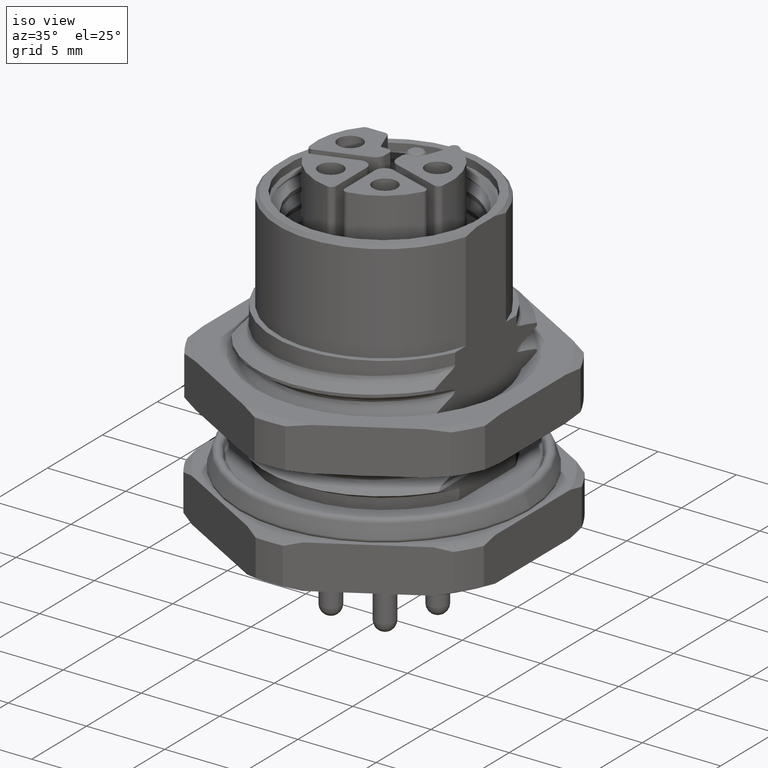
[diagram: clean part render]
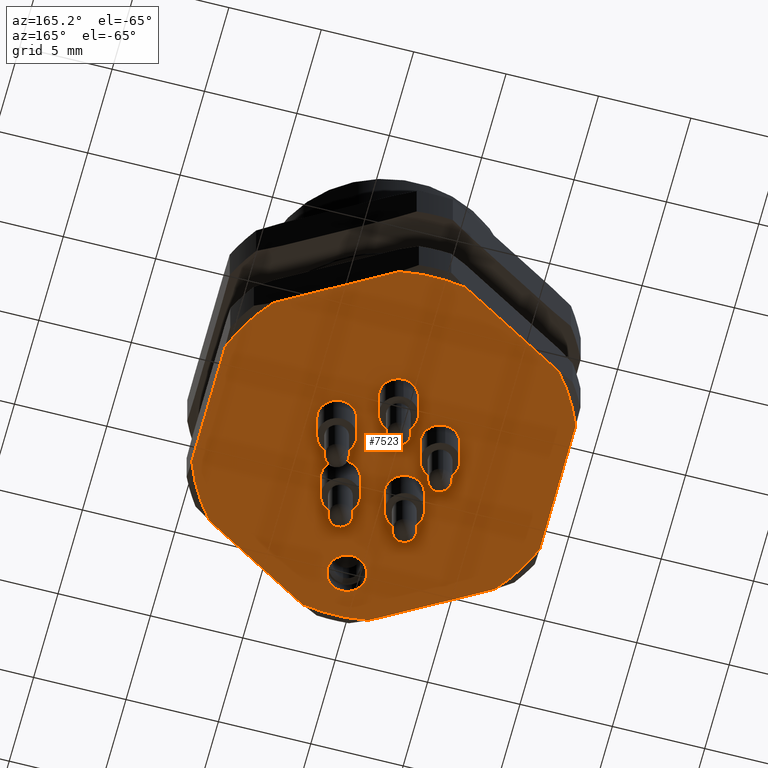
[diagram: tour spotlight — one face highlighted and labeled with its STEP entity id]
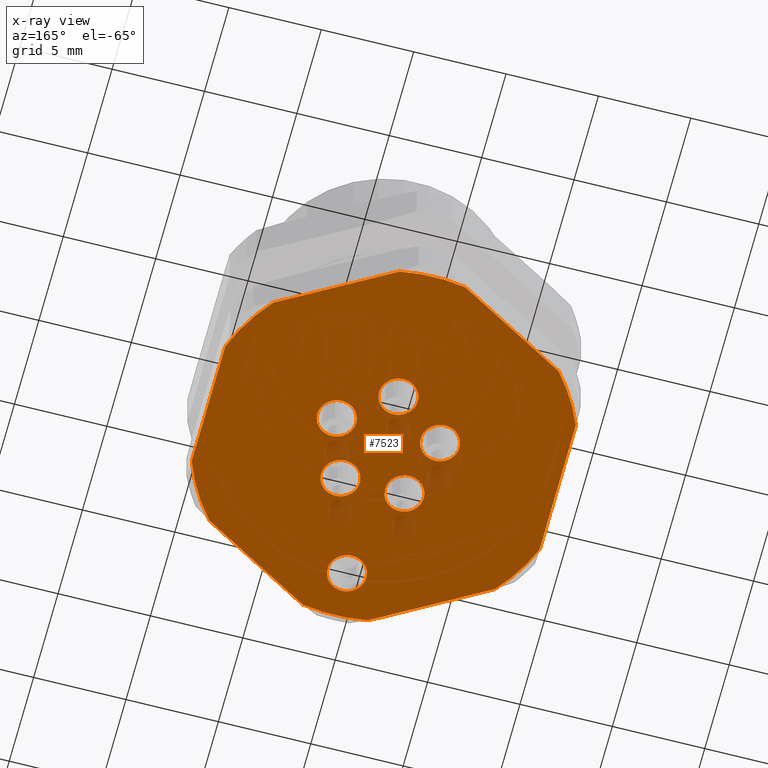
[diagram: x-ray of the same camera — body ghosted, this tour face saturated]
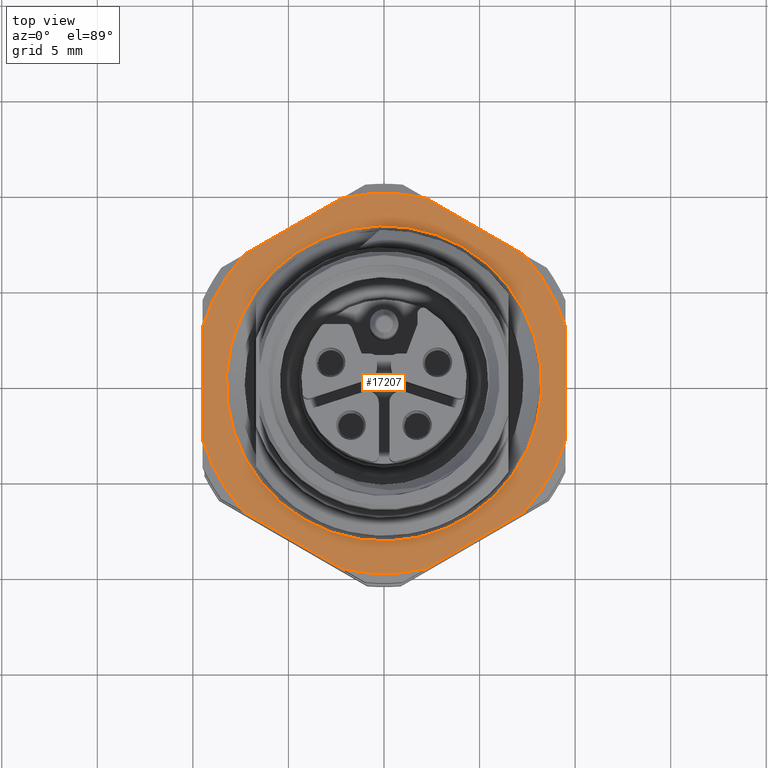
[diagram: tour spotlight — one face highlighted and labeled with its STEP entity id]
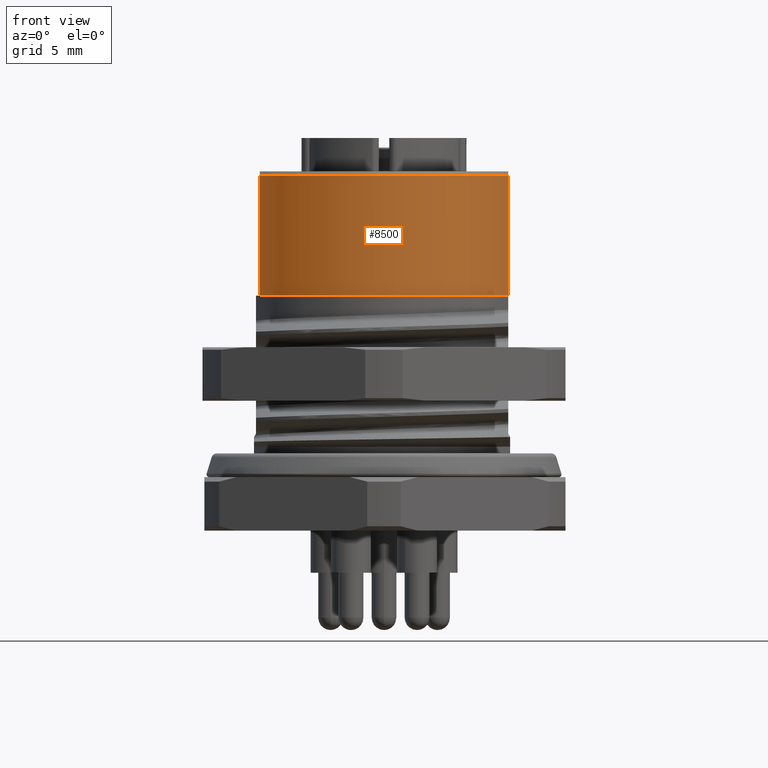
[diagram: tour spotlight — one face highlighted and labeled with its STEP entity id]
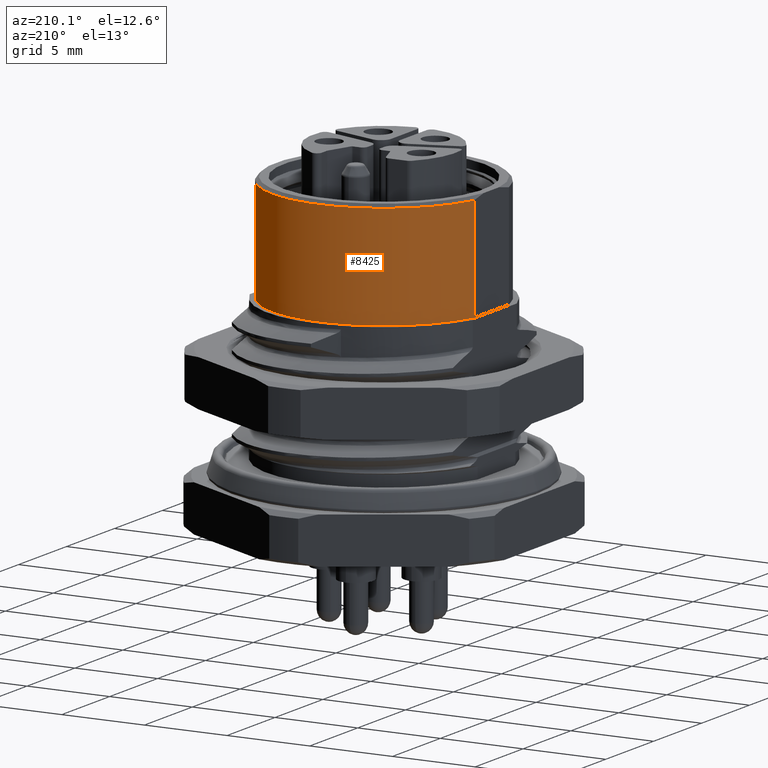
[diagram: tour spotlight — one face highlighted and labeled with its STEP entity id]
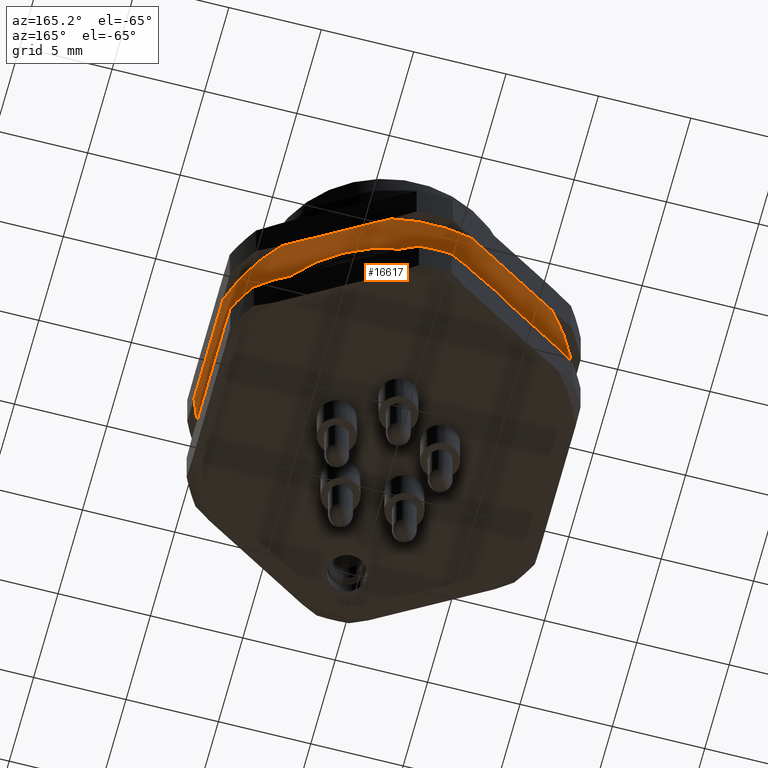
[diagram: tour spotlight — one face highlighted and labeled with its STEP entity id]
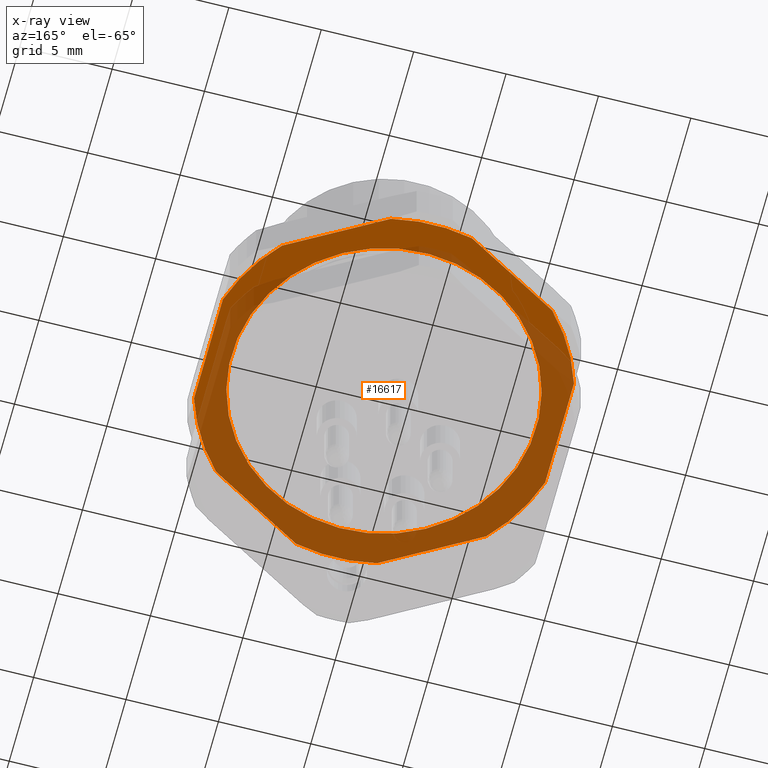
[diagram: x-ray of the same camera — body ghosted, this tour face saturated]
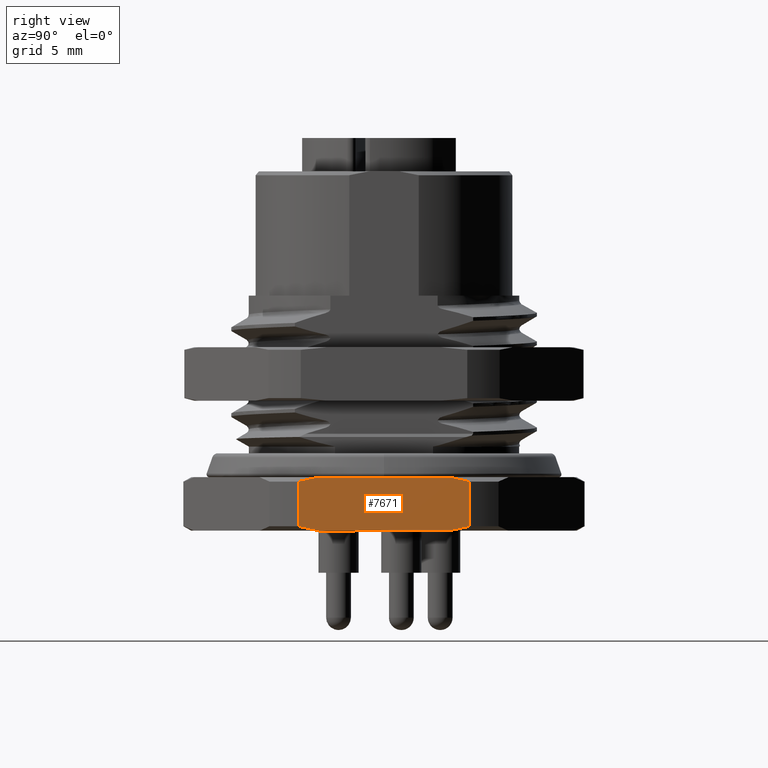
[diagram: tour spotlight — one face highlighted and labeled with its STEP entity id]
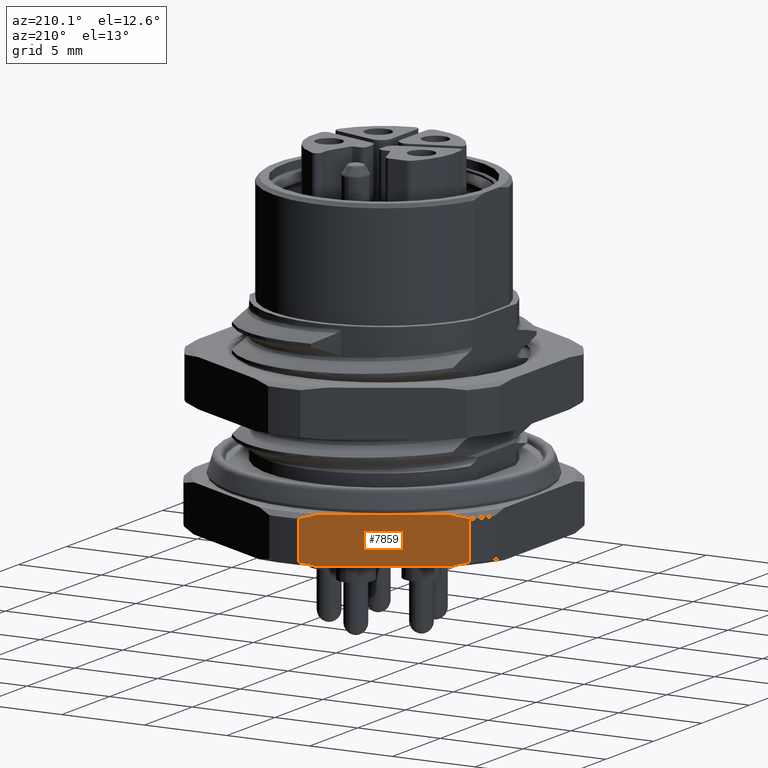
[diagram: tour spotlight — one face highlighted and labeled with its STEP entity id]
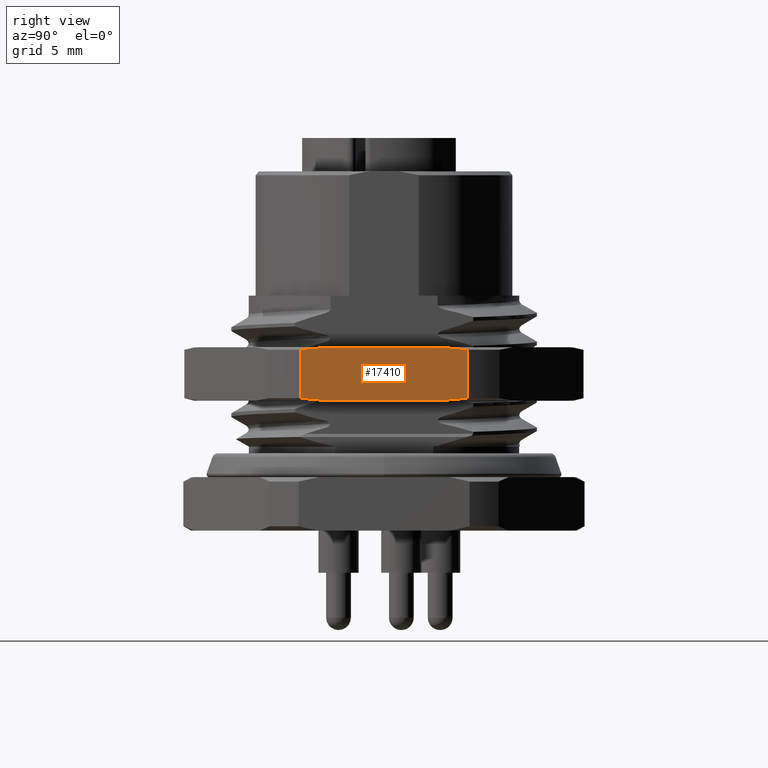
[diagram: tour spotlight — one face highlighted and labeled with its STEP entity id]
A machine part: a face-by-face anatomy tour. The part has 313 B-rep faces; the first image is the clean iso view, then the 8 largest visible faces are spotlighted one at a time (largest first), each with its STEP entity span.

Face 1 — auxiliary view, entity #7523. An x-ray twin of the same camera follows (body ghosted, this face saturated) — the face is partly hidden behind the body. In plain terms, the highlighted planar face has unit normal (0, 0, 1).
Definition (entity closure, byte-faithful):
#13=CARTESIAN_POINT('',(0.E0,0.E0,-2.8E0));
#14=DIRECTION('',(0.E0,0.E0,1.E0));
#15=DIRECTION('',(1.762526256452E-1,9.843449659307E-1,0.E0));
#16=AXIS2_PLACEMENT_3D('',#13,#14,#15);
#18=DIRECTION('',(8.660254037844E-1,5.E-1,0.E0));
#19=VECTOR('',#18,6.858571279793E0);
#20=CARTESIAN_POINT('',(-7.719848480984E0,6.512598516004E0,-2.8E0));
#21=LINE('',#20,#19);
#22=CARTESIAN_POINT('',(0.E0,0.E0,-2.8E0));
#23=DIRECTION('',(0.E0,0.E0,1.E0));
#24=DIRECTION('',(-7.643414337607E-1,6.448117342578E-1,0.E0));
#25=AXIS2_PLACEMENT_3D('',#22,#23,#24);
#27=DIRECTION('',(0.E0,-1.E0,0.E0));
#28=VECTOR('',#27,7.389181280765E0);
#29=CARTESIAN_POINT('',(-9.4E0,3.694590640382E0,-2.8E0));
#30=LINE('',#29,#28);
#31=CARTESIAN_POINT('',(0.E0,0.E0,-2.8E0));
#32=DIRECTION('',(0.E0,0.E0,1.E0));
#33=DIRECTION('',(-9.306930693069E-1,-3.658010535032E-1,0.E0));
#34=AXIS2_PLACEMENT_3D('',#31,#32,#33);
#36=DIRECTION('',(-8.660254037844E-1,5.E-1,0.E0));
#37=VECTOR('',#36,6.858571279793E0);
#38=CARTESIAN_POINT('',(-1.780151519016E0,-9.941884155900E0,-2.8E0));
#39=LINE('',#38,#37);
#40=CARTESIAN_POINT('',(0.E0,0.E0,-2.8E0));
#41=DIRECTION('',(0.E0,0.E0,1.E0));
#42=DIRECTION('',(-1.762526256452E-1,-9.843449659307E-1,0.E0));
#43=AXIS2_PLACEMENT_3D('',#40,#41,#42);
#45=DIRECTION('',(-8.660254037844E-1,-5.E-1,0.E0));
#46=VECTOR('',#45,6.858571279793E0);
#47=CARTESIAN_POINT('',(7.719848480983E0,-6.512598516004E0,-2.8E0));
#48=LINE('',#47,#46);
#49=CARTESIAN_POINT('',(0.E0,0.E0,-2.8E0));
#50=DIRECTION('',(0.E0,0.E0,1.E0));
#51=DIRECTION('',(7.643414337607E-1,-6.448117342578E-1,0.E0));
#52=AXIS2_PLACEMENT_3D('',#49,#50,#51);
#54=DIRECTION('',(0.E0,1.E0,0.E0));
#55=VECTOR('',#54,6.858571279793E0);
#56=CARTESIAN_POINT('',(9.5E0,-3.429285639896E0,-2.8E0));
#57=LINE('',#56,#55);
#58=CARTESIAN_POINT('',(0.E0,0.E0,-2.8E0));
#59=DIRECTION('',(0.E0,0.E0,1.E0));
#60=DIRECTION('',(9.405940594059E-1,3.395332316729E-1,0.E0));
#61=AXIS2_PLACEMENT_3D('',#58,#59,#60);
#63=DIRECTION('',(8.660254037844E-1,-5.E-1,0.E0));
#64=VECTOR('',#63,6.858571279793E0);
#65=CARTESIAN_POINT('',(1.780151519016E0,9.941884155900E0,-2.8E0));
#66=LINE('',#65,#64);
#67=CARTESIAN_POINT('',(0.E0,-7.6E0,-2.8E0));
#68=DIRECTION('',(0.E0,0.E0,-1.E0));
#69=DIRECTION('',(-5.E-1,-8.660254037844E-1,0.E0));
#70=AXIS2_PLACEMENT_3D('',#67,#68,#69);
#72=CARTESIAN_POINT('',(0.E0,-7.6E0,-2.8E0));
#73=DIRECTION('',(0.E0,0.E0,-1.E0));
#74=DIRECTION('',(5.E-1,8.660254037844E-1,0.E0));
#75=AXIS2_PLACEMENT_3D('',#72,#73,#74);
#77=CARTESIAN_POINT('',(0.E0,2.94E0,-2.8E0));
#78=DIRECTION('',(0.E0,0.E0,1.E0));
#79=DIRECTION('',(0.E0,1.E0,0.E0));
#80=AXIS2_PLACEMENT_3D('',#77,#78,#79);
#82=CARTESIAN_POINT('',(0.E0,2.94E0,-2.8E0));
#83=DIRECTION('',(0.E0,0.E0,1.E0));
#84=DIRECTION('',(0.E0,-1.E0,0.E0));
#85=AXIS2_PLACEMENT_3D('',#82,#83,#84);
#87=CARTESIAN_POINT('',(-2.796106157908E0,9.085099634623E-1,-2.8E0));
#88=DIRECTION('',(0.E0,0.E0,1.E0));
#89=DIRECTION('',(0.E0,1.E0,0.E0));
#90=AXIS2_PLACEMENT_3D('',#87,#88,#89);
#92=CARTESIAN_POINT('',(-2.796106157908E0,9.085099634623E-1,-2.8E0));
#93=DIRECTION('',(0.E0,0.E0,1.E0));
#94=DIRECTION('',(0.E0,-1.E0,0.E0));
#95=AXIS2_PLACEMENT_3D('',#92,#93,#94);
#97=CARTESIAN_POINT('',(-1.728088641740E0,-2.378509963462E0,-2.8E0));
#98=DIRECTION('',(0.E0,0.E0,1.E0));
#99=DIRECTION('',(-9.510565162952E-1,3.090169943749E-1,0.E0));
#100=AXIS2_PLACEMENT_3D('',#97,#98,#99);
#102=CARTESIAN_POINT('',(-1.728088641740E0,-2.378509963462E0,-2.8E0));
#103=DIRECTION('',(0.E0,0.E0,1.E0));
#104=DIRECTION('',(9.510565162952E-1,-3.090169943749E-1,0.E0));
#105=AXIS2_PLACEMENT_3D('',#102,#103,#104);
#107=CARTESIAN_POINT('',(1.728088641740E0,-2.378509963462E0,-2.8E0));
#108=DIRECTION('',(0.E0,0.E0,1.E0));
#109=DIRECTION('',(-5.877852522925E-1,-8.090169943749E-1,0.E0));
#110=AXIS2_PLACEMENT_3D('',#107,#108,#109);
#112=CARTESIAN_POINT('',(1.728088641740E0,-2.378509963462E0,-2.8E0));
#113=DIRECTION('',(0.E0,0.E0,1.E0));
#114=DIRECTION('',(5.877852522925E-1,8.090169943749E-1,0.E0));
#115=AXIS2_PLACEMENT_3D('',#112,#113,#114);
#117=CARTESIAN_POINT('',(2.796106157908E0,9.085099634623E-1,-2.8E0));
#118=DIRECTION('',(0.E0,0.E0,1.E0));
#119=DIRECTION('',(5.877852522925E-1,-8.090169943749E-1,0.E0));
#120=AXIS2_PLACEMENT_3D('',#117,#118,#119);
#122=CARTESIAN_POINT('',(2.796106157908E0,9.085099634623E-1,-2.8E0));
#123=DIRECTION('',(0.E0,0.E0,1.E0));
#124=DIRECTION('',(-5.877852522925E-1,8.090169943749E-1,0.E0));
#125=AXIS2_PLACEMENT_3D('',#122,#123,#124);
#6666=CARTESIAN_POINT('',(1.780151519016E0,9.941884155900E0,-2.8E0));
#6667=CARTESIAN_POINT('',(-1.780151519016E0,9.941884155900E0,-2.8E0));
#6668=VERTEX_POINT('',#6666);
#6669=VERTEX_POINT('',#6667);
#6670=CARTESIAN_POINT('',(-7.719848480984E0,6.512598516004E0,-2.8E0));
#6671=CARTESIAN_POINT('',(-9.4E0,3.694590640382E0,-2.8E0));
#6672=VERTEX_POINT('',#6670);
#6673=VERTEX_POINT('',#6671);
#6674=CARTESIAN_POINT('',(-9.4E0,-3.694590640382E0,-2.8E0));
#6675=CARTESIAN_POINT('',(-7.719848480984E0,-6.512598516004E0,-2.8E0));
#6676=VERTEX_POINT('',#6674);
#6677=VERTEX_POINT('',#6675);
#6678=CARTESIAN_POINT('',(-1.780151519016E0,-9.941884155900E0,-2.8E0));
#6679=CARTESIAN_POINT('',(1.780151519017E0,-9.941884155900E0,-2.8E0));
#6680=VERTEX_POINT('',#6678);
#6681=VERTEX_POINT('',#6679);
#6682=CARTESIAN_POINT('',(7.719848480984E0,-6.512598516004E0,-2.8E0));
#6683=CARTESIAN_POINT('',(9.5E0,-3.429285639896E0,-2.8E0));
#6684=VERTEX_POINT('',#6682);
#6685=VERTEX_POINT('',#6683);
#6686=CARTESIAN_POINT('',(9.5E0,3.429285639896E0,-2.8E0));
#6687=CARTESIAN_POINT('',(7.719848480984E0,6.512598516004E0,-2.8E0));
#6688=VERTEX_POINT('',#6686);
#6689=VERTEX_POINT('',#6687);
#6849=CARTESIAN_POINT('',(-5.25E-1,-8.509326673974E0,-2.8E0));
#6850=VERTEX_POINT('',#6849);
#6851=CARTESIAN_POINT('',(5.25E-1,-6.690673326026E0,-2.8E0));
#6852=VERTEX_POINT('',#6851);
#7220=CARTESIAN_POINT('',(0.E0,3.99E0,-2.8E0));
#7221=CARTESIAN_POINT('',(0.E0,1.89E0,-2.8E0));
#7222=VERTEX_POINT('',#7220);
#7223=VERTEX_POINT('',#7221);
#7250=CARTESIAN_POINT('',(-2.796106157908E0,1.958509963462E0,-2.8E0));
#7251=CARTESIAN_POINT('',(-2.796106157908E0,-1.414900365376E-1,-2.8E0));
#7252=VERTEX_POINT('',#7250);
#7253=VERTEX_POINT('',#7251);
#7296=CARTESIAN_POINT('',(-2.726697983850E0,-2.054042119369E0,-2.8E0));
#7297=CARTESIAN_POINT('',(-7.294792996300E-1,-2.702977807556E0,-2.8E0));
#7298=VERTEX_POINT('',#7296);
#7299=VERTEX_POINT('',#7297);
#7346=CARTESIAN_POINT('',(1.110914126833E0,-3.227977807556E0,-2.8E0));
#7347=CARTESIAN_POINT('',(2.345263156647E0,-1.529042119369E0,-2.8E0));
#7348=VERTEX_POINT('',#7346);
#7349=VERTEX_POINT('',#7347);
#7396=CARTESIAN_POINT('',(3.413280672815E0,5.904211936870E-2,-2.8E0));
#7397=CARTESIAN_POINT('',(2.178931643001E0,1.757977807556E0,-2.8E0));
#7398=VERTEX_POINT('',#7396);
#7399=VERTEX_POINT('',#7397);
#7456=CARTESIAN_POINT('',(0.E0,0.E0,-2.8E0));
#7457=DIRECTION('',(0.E0,0.E0,1.E0));
#7458=DIRECTION('',(5.E-1,8.660254037844E-1,0.E0));
#7459=AXIS2_PLACEMENT_3D('',#7456,#7457,#7458);
#7460=PLANE('',#7459);
#7462=ORIENTED_EDGE('',*,*,#7461,.T.);
#7464=ORIENTED_EDGE('',*,*,#7463,.F.);
#7466=ORIENTED_EDGE('',*,*,#7465,.T.);
#7468=ORIENTED_EDGE('',*,*,#7467,.T.);
#7470=ORIENTED_EDGE('',*,*,#7469,.T.);
#7472=ORIENTED_EDGE('',*,*,#7471,.F.);
#7474=ORIENTED_EDGE('',*,*,#7473,.T.);
#7476=ORIENTED_EDGE('',*,*,#7475,.F.);
#7478=ORIENTED_EDGE('',*,*,#7477,.T.);
#7480=ORIENTED_EDGE('',*,*,#7479,.T.);
#7482=ORIENTED_EDGE('',*,*,#7481,.T.);
#7484=ORIENTED_EDGE('',*,*,#7483,.F.);
#7485=EDGE_LOOP('',(#7462,#7464,#7466,#7468,#7470,#7472,#7474,#7476,#7478,#7480,
#7482,#7484));
#7486=FACE_OUTER_BOUND('',#7485,.F.);
#7488=ORIENTED_EDGE('',*,*,#7487,.T.);
#7490=ORIENTED_EDGE('',*,*,#7489,.T.);
#7491=EDGE_LOOP('',(#7488,#7490));
#7492=FACE_BOUND('',#7491,.F.);
#7494=ORIENTED_EDGE('',*,*,#7493,.F.);
#7496=ORIENTED_EDGE('',*,*,#7495,.F.);
#7497=EDGE_LOOP('',(#7494,#7496));
#7498=FACE_BOUND('',#7497,.F.);
#7500=ORIENTED_EDGE('',*,*,#7499,.F.);
#7502=ORIENTED_EDGE('',*,*,#7501,.F.);
#7503=EDGE_LOOP('',(#7500,#7502));
#7504=FACE_BOUND('',#7503,.F.);
#7506=ORIENTED_EDGE('',*,*,#7505,.F.);
#7508=ORIENTED_EDGE('',*,*,#7507,.F.);
#7509=EDGE_LOOP('',(#7506,#7508));
#7510=FACE_BOUND('',#7509,.F.);
#7512=ORIENTED_EDGE('',*,*,#7511,.F.);
#7514=ORIENTED_EDGE('',*,*,#7513,.F.);
#7515=EDGE_LOOP('',(#7512,#7514));
#7516=FACE_BOUND('',#7515,.F.);
#7518=ORIENTED_EDGE('',*,*,#7517,.F.);
#7520=ORIENTED_EDGE('',*,*,#7519,.F.);
#7521=EDGE_LOOP('',(#7518,#7520));
#7522=FACE_BOUND('',#7521,.F.);
#17=CIRCLE('',#16,1.01E1);
#26=CIRCLE('',#25,1.01E1);
#35=CIRCLE('',#34,1.01E1);
#44=CIRCLE('',#43,1.01E1);
#53=CIRCLE('',#52,1.01E1);
#62=CIRCLE('',#61,1.01E1);
#71=CIRCLE('',#70,1.05E0);
#76=CIRCLE('',#75,1.05E0);
#81=CIRCLE('',#80,1.05E0);
#86=CIRCLE('',#85,1.05E0);
#91=CIRCLE('',#90,1.05E0);
#96=CIRCLE('',#95,1.05E0);
#101=CIRCLE('',#100,1.05E0);
#106=CIRCLE('',#105,1.05E0);
#111=CIRCLE('',#110,1.05E0);
#116=CIRCLE('',#115,1.05E0);
#121=CIRCLE('',#120,1.05E0);
#126=CIRCLE('',#125,1.05E0);
#7461=EDGE_CURVE('',#6668,#6669,#17,.T.);
#7463=EDGE_CURVE('',#6672,#6669,#21,.T.);
#7465=EDGE_CURVE('',#6672,#6673,#26,.T.);
#7467=EDGE_CURVE('',#6673,#6676,#30,.T.);
#7469=EDGE_CURVE('',#6676,#6677,#35,.T.);
#7471=EDGE_CURVE('',#6680,#6677,#39,.T.);
#7473=EDGE_CURVE('',#6680,#6681,#44,.T.);
#7475=EDGE_CURVE('',#6684,#6681,#48,.T.);
#7477=EDGE_CURVE('',#6684,#6685,#53,.T.);
#7479=EDGE_CURVE('',#6685,#6688,#57,.T.);
#7481=EDGE_CURVE('',#6688,#6689,#62,.T.);
#7483=EDGE_CURVE('',#6668,#6689,#66,.T.);
#7487=EDGE_CURVE('',#6850,#6852,#71,.T.);
#7489=EDGE_CURVE('',#6852,#6850,#76,.T.);
#7493=EDGE_CURVE('',#7222,#7223,#81,.T.);
#7495=EDGE_CURVE('',#7223,#7222,#86,.T.);
#7499=EDGE_CURVE('',#7252,#7253,#91,.T.);
#7501=EDGE_CURVE('',#7253,#7252,#96,.T.);
#7505=EDGE_CURVE('',#7298,#7299,#101,.T.);
#7507=EDGE_CURVE('',#7299,#7298,#106,.T.);
#7511=EDGE_CURVE('',#7348,#7349,#111,.T.);
#7513=EDGE_CURVE('',#7349,#7348,#116,.T.);
#7517=EDGE_CURVE('',#7398,#7399,#121,.T.);
#7519=EDGE_CURVE('',#7399,#7398,#126,.T.);
#7523=ADVANCED_FACE('',(#7486,#7492,#7498,#7504,#7510,#7516,#7522),#7460,.F.);

Face 2 — top view, entity #17207. In plain terms, the highlighted planar face has unit normal (0, 0, -1).
Definition (entity closure, byte-faithful):
#15605=CARTESIAN_POINT('',(9.706472555201E0,-2.187896372119E0,0.E0));
#15797=CARTESIAN_POINT('',(0.E0,0.E0,0.E0));
#15798=DIRECTION('',(0.E0,0.E0,-1.E0));
#15799=DIRECTION('',(0.E0,1.E0,0.E0));
#15800=AXIS2_PLACEMENT_3D('',#15797,#15798,#15799);
#16080=CARTESIAN_POINT('',(0.E0,0.E0,0.E0));
#16081=DIRECTION('',(0.E0,0.E0,1.E0));
#16082=DIRECTION('',(0.E0,1.E0,0.E0));
#16083=AXIS2_PLACEMENT_3D('',#16080,#16081,#16082);
#16089=DIRECTION('',(-5.E-1,-8.660254037844E-1,0.E0));
#16090=VECTOR('',#16089,5.916924876995E0);
#16091=CARTESIAN_POINT('',(9.706472555201E0,-2.187896372119E0,0.E0));
#16092=LINE('',#16091,#16090);
#16093=CARTESIAN_POINT('',(1.224646799147E-14,0.E0,0.E0));
#16094=DIRECTION('',(0.E0,0.E0,-1.E0));
#16095=DIRECTION('',(6.781919715280E-1,-7.348847867217E-1,0.E0));
#16096=AXIS2_PLACEMENT_3D('',#16093,#16094,#16095);
#16098=DIRECTION('',(-1.E0,0.E0,0.E0));
#16099=VECTOR('',#16098,5.916924876995E0);
#16100=CARTESIAN_POINT('',(2.958462438497E0,-9.5E0,0.E0));
#16101=LINE('',#16100,#16099);
#16102=CARTESIAN_POINT('',(1.224646799147E-14,0.E0,0.E0));
#16103=DIRECTION('',(0.E0,0.E0,-1.E0));
#16104=DIRECTION('',(-2.973329083917E-1,-9.547738693467E-1,0.E0));
#16105=AXIS2_PLACEMENT_3D('',#16102,#16103,#16104);
#16107=DIRECTION('',(-5.E-1,8.660254037844E-1,0.E0));
#16108=VECTOR('',#16107,5.916924876995E0);
#16109=CARTESIAN_POINT('',(-6.748010116704E0,-7.312103627881E0,0.E0));
#16110=LINE('',#16109,#16108);
#16111=DIRECTION('',(5.E-1,8.660254037844E-1,0.E0));
#16112=VECTOR('',#16111,5.916924876995E0);
#16113=CARTESIAN_POINT('',(-9.706472555201E0,2.187896372119E0,0.E0));
#16114=LINE('',#16113,#16112);
#16115=CARTESIAN_POINT('',(1.224646799147E-14,0.E0,0.E0));
#16116=DIRECTION('',(0.E0,0.E0,-1.E0));
#16117=DIRECTION('',(-6.781919715280E-1,7.348847867217E-1,0.E0));
#16118=AXIS2_PLACEMENT_3D('',#16115,#16116,#16117);
#16120=DIRECTION('',(1.E0,0.E0,0.E0));
#16121=VECTOR('',#16120,5.916924876995E0);
#16122=CARTESIAN_POINT('',(-2.958462438497E0,9.5E0,0.E0));
#16123=LINE('',#16122,#16121);
#16124=CARTESIAN_POINT('',(1.224646799147E-14,0.E0,0.E0));
#16125=DIRECTION('',(0.E0,0.E0,-1.E0));
#16126=DIRECTION('',(2.973329083917E-1,9.547738693467E-1,0.E0));
#16127=AXIS2_PLACEMENT_3D('',#16124,#16125,#16126);
#16129=DIRECTION('',(5.E-1,-8.660254037844E-1,0.E0));
#16130=VECTOR('',#16129,5.916924876995E0);
#16131=CARTESIAN_POINT('',(6.748010116703E0,7.312103627881E0,0.E0));
#16132=LINE('',#16131,#16130);
#16143=CARTESIAN_POINT('',(1.224646799147E-14,0.E0,0.E0));
#16144=DIRECTION('',(0.E0,0.E0,1.E0));
#16145=DIRECTION('',(9.755248799197E-1,-2.198890826250E-1,0.E0));
#16146=AXIS2_PLACEMENT_3D('',#16143,#16144,#16145);
#16168=CARTESIAN_POINT('',(1.224646799147E-14,0.E0,0.E0));
#16169=DIRECTION('',(0.E0,0.E0,1.E0));
#16170=DIRECTION('',(-9.755248799197E-1,2.198890826251E-1,0.E0));
#16171=AXIS2_PLACEMENT_3D('',#16168,#16169,#16170);
#16260=CARTESIAN_POINT('',(9.706472555201E0,2.187896372119E0,0.E0));
#16332=CARTESIAN_POINT('',(-9.706472555201E0,-2.187896372119E0,0.E0));
#16380=CARTESIAN_POINT('',(-9.706472555201E0,2.187896372119E0,0.E0));
#16393=CARTESIAN_POINT('',(6.748010116703E0,-7.312103627881E0,0.E0));
#16394=CARTESIAN_POINT('',(2.958462438497E0,-9.5E0,0.E0));
#16395=VERTEX_POINT('',#16393);
#16396=VERTEX_POINT('',#16394);
#16397=CARTESIAN_POINT('',(-2.958462438497E0,-9.5E0,0.E0));
#16398=CARTESIAN_POINT('',(-6.748010116704E0,-7.312103627881E0,0.E0));
#16399=VERTEX_POINT('',#16397);
#16400=VERTEX_POINT('',#16398);
#16401=CARTESIAN_POINT('',(-6.748010116704E0,7.312103627881E0,0.E0));
#16402=CARTESIAN_POINT('',(-2.958462438497E0,9.5E0,0.E0));
#16403=VERTEX_POINT('',#16401);
#16404=VERTEX_POINT('',#16402);
#16405=CARTESIAN_POINT('',(2.958462438497E0,9.5E0,0.E0));
#16406=CARTESIAN_POINT('',(6.748010116703E0,7.312103627881E0,0.E0));
#16407=VERTEX_POINT('',#16405);
#16408=VERTEX_POINT('',#16406);
#16426=VERTEX_POINT('',#15605);
#16427=VERTEX_POINT('',#16260);
#16430=VERTEX_POINT('',#16380);
#16431=VERTEX_POINT('',#16332);
#16433=CARTESIAN_POINT('',(0.E0,8.25E0,0.E0));
#16435=VERTEX_POINT('',#16433);
#16437=CARTESIAN_POINT('',(0.E0,-8.25E0,0.E0));
#16438=VERTEX_POINT('',#16437);
#17173=CARTESIAN_POINT('',(0.E0,0.E0,0.E0));
#17174=DIRECTION('',(0.E0,0.E0,-1.E0));
#17175=DIRECTION('',(0.E0,-1.E0,0.E0));
#17176=AXIS2_PLACEMENT_3D('',#17173,#17174,#17175);
#17177=PLANE('',#17176);
#17179=ORIENTED_EDGE('',*,*,#17178,.F.);
#17180=ORIENTED_EDGE('',*,*,#16571,.T.);
#17182=ORIENTED_EDGE('',*,*,#17181,.T.);
#17184=ORIENTED_EDGE('',*,*,#17183,.T.);
#17186=ORIENTED_EDGE('',*,*,#17185,.T.);
#17188=ORIENTED_EDGE('',*,*,#17187,.T.);
#17190=ORIENTED_EDGE('',*,*,#17189,.F.);
#17192=ORIENTED_EDGE('',*,*,#17191,.T.);
#17194=ORIENTED_EDGE('',*,*,#17193,.T.);
#17196=ORIENTED_EDGE('',*,*,#17195,.T.);
#17198=ORIENTED_EDGE('',*,*,#17197,.T.);
#17200=ORIENTED_EDGE('',*,*,#17199,.T.);
#17201=EDGE_LOOP('',(#17179,#17180,#17182,#17184,#17186,#17188,#17190,#17192,
#17194,#17196,#17198,#17200));
#17202=FACE_OUTER_BOUND('',#17201,.F.);
#17203=ORIENTED_EDGE('',*,*,#16800,.F.);
#17204=ORIENTED_EDGE('',*,*,#17166,.T.);
#17205=EDGE_LOOP('',(#17203,#17204));
#17206=FACE_BOUND('',#17205,.F.);
#15801=CIRCLE('',#15800,8.25E0);
#16084=CIRCLE('',#16083,8.25E0);
#16097=CIRCLE('',#16096,9.95E0);
#16106=CIRCLE('',#16105,9.95E0);
#16119=CIRCLE('',#16118,9.95E0);
#16128=CIRCLE('',#16127,9.95E0);
#16147=CIRCLE('',#16146,9.95E0);
#16172=CIRCLE('',#16171,9.95E0);
#16571=EDGE_CURVE('',#16426,#16395,#16092,.T.);
#16800=EDGE_CURVE('',#16435,#16438,#15801,.T.);
#17166=EDGE_CURVE('',#16435,#16438,#16084,.T.);
#17178=EDGE_CURVE('',#16426,#16427,#16147,.T.);
#17181=EDGE_CURVE('',#16395,#16396,#16097,.T.);
#17183=EDGE_CURVE('',#16396,#16399,#16101,.T.);
#17185=EDGE_CURVE('',#16399,#16400,#16106,.T.);
#17187=EDGE_CURVE('',#16400,#16431,#16110,.T.);
#17189=EDGE_CURVE('',#16430,#16431,#16172,.T.);
#17191=EDGE_CURVE('',#16430,#16403,#16114,.T.);
#17193=EDGE_CURVE('',#16403,#16404,#16119,.T.);
#17195=EDGE_CURVE('',#16404,#16407,#16123,.T.);
#17197=EDGE_CURVE('',#16407,#16408,#16128,.T.);
#17199=EDGE_CURVE('',#16408,#16427,#16132,.T.);
#17207=ADVANCED_FACE('',(#17202,#17206),#17177,.F.);

Face 3 — front view, entity #8500. In plain terms, the highlighted cylindrical surface (partial cylindrical patch) has radius 6.75 mm, axis along (0, 0, 1).
Definition (entity closure, byte-faithful):
#848=CARTESIAN_POINT('',(-1.906415557642E-14,1.100669440665E-14,1.58E1));
#849=DIRECTION('',(0.E0,0.E0,-1.E0));
#850=DIRECTION('',(9.629629629630E-1,-2.696336996030E-1,0.E0));
#851=AXIS2_PLACEMENT_3D('',#848,#849,#850);
#853=DIRECTION('',(0.E0,0.E0,1.E0));
#854=VECTOR('',#853,6.3E0);
#855=CARTESIAN_POINT('',(-6.5E0,-1.820027472321E0,9.5E0));
#856=LINE('',#855,#854);
#857=DIRECTION('',(0.E0,0.E0,1.E0));
#858=VECTOR('',#857,6.3E0);
#859=CARTESIAN_POINT('',(6.5E0,-1.820027472320E0,9.5E0));
#860=LINE('',#859,#858);
#861=CARTESIAN_POINT('',(0.E0,0.E0,9.5E0));
#862=DIRECTION('',(0.E0,0.E0,-1.E0));
#863=DIRECTION('',(9.629629629630E-1,-2.696336996030E-1,0.E0));
#864=AXIS2_PLACEMENT_3D('',#861,#862,#863);
#6881=CARTESIAN_POINT('',(6.5E0,-1.820027472320E0,9.5E0));
#6882=VERTEX_POINT('',#6881);
#6885=CARTESIAN_POINT('',(6.5E0,-1.820027472320E0,1.58E1));
#6886=VERTEX_POINT('',#6885);
#7010=CARTESIAN_POINT('',(-6.5E0,-1.820027472321E0,9.5E0));
#7011=CARTESIAN_POINT('',(-6.5E0,-1.820027472321E0,1.58E1));
#7012=VERTEX_POINT('',#7010);
#7013=VERTEX_POINT('',#7011);
#8489=CARTESIAN_POINT('',(0.E0,0.E0,1.6E1));
#8490=DIRECTION('',(0.E0,0.E0,1.E0));
#8491=DIRECTION('',(5.E-1,8.660254037844E-1,0.E0));
#8492=AXIS2_PLACEMENT_3D('',#8489,#8490,#8491);
#8493=CYLINDRICAL_SURFACE('',#8492,6.75E0);
#8494=ORIENTED_EDGE('',*,*,#8438,.T.);
#8495=ORIENTED_EDGE('',*,*,#8484,.F.);
#8496=ORIENTED_EDGE('',*,*,#8357,.F.);
#8497=ORIENTED_EDGE('',*,*,#8400,.T.);
#8498=EDGE_LOOP('',(#8494,#8495,#8496,#8497));
#8499=FACE_OUTER_BOUND('',#8498,.F.);
#852=CIRCLE('',#851,6.75E0);
#865=CIRCLE('',#864,6.75E0);
#8357=EDGE_CURVE('',#6882,#6886,#860,.T.);
#8400=EDGE_CURVE('',#6882,#7012,#865,.T.);
#8438=EDGE_CURVE('',#7012,#7013,#856,.T.);
#8484=EDGE_CURVE('',#6886,#7013,#852,.T.);
#8500=ADVANCED_FACE('',(#8499),#8493,.T.);

Face 4 — auxiliary view, entity #8425. In plain terms, the highlighted cylindrical surface (partial cylindrical patch) has radius 6.75 mm, axis along (0, 0, 1).
Definition (entity closure, byte-faithful):
#774=DIRECTION('',(0.E0,0.E0,1.E0));
#775=VECTOR('',#774,6.3E0);
#776=CARTESIAN_POINT('',(-6.5E0,1.820027472321E0,9.5E0));
#777=LINE('',#776,#775);
#778=CARTESIAN_POINT('',(0.E0,0.E0,9.5E0));
#779=DIRECTION('',(0.E0,0.E0,-1.E0));
#780=DIRECTION('',(-9.629629629629E-1,2.696336996032E-1,0.E0));
#781=AXIS2_PLACEMENT_3D('',#778,#779,#780);
#783=DIRECTION('',(0.E0,0.E0,1.E0));
#784=VECTOR('',#783,6.3E0);
#785=CARTESIAN_POINT('',(6.5E0,1.820027472320E0,9.5E0));
#786=LINE('',#785,#784);
#794=CARTESIAN_POINT('',(-1.906415557642E-14,1.100669440665E-14,1.58E1));
#795=DIRECTION('',(0.E0,0.E0,-1.E0));
#796=DIRECTION('',(-9.629629629629E-1,2.696336996032E-1,0.E0));
#797=AXIS2_PLACEMENT_3D('',#794,#795,#796);
#6879=CARTESIAN_POINT('',(6.5E0,1.820027472320E0,9.5E0));
#6880=VERTEX_POINT('',#6879);
#6883=CARTESIAN_POINT('',(6.5E0,1.820027472320E0,1.58E1));
#6884=VERTEX_POINT('',#6883);
#7006=CARTESIAN_POINT('',(-6.5E0,1.820027472321E0,9.5E0));
#7007=CARTESIAN_POINT('',(-6.5E0,1.820027472321E0,1.58E1));
#7008=VERTEX_POINT('',#7006);
#7009=VERTEX_POINT('',#7007);
#8412=CARTESIAN_POINT('',(0.E0,0.E0,1.6E1));
#8413=DIRECTION('',(0.E0,0.E0,1.E0));
#8414=DIRECTION('',(5.E-1,8.660254037844E-1,0.E0));
#8415=AXIS2_PLACEMENT_3D('',#8412,#8413,#8414);
#8416=CYLINDRICAL_SURFACE('',#8415,6.75E0);
#8418=ORIENTED_EDGE('',*,*,#8417,.F.);
#8419=ORIENTED_EDGE('',*,*,#8396,.T.);
#8420=ORIENTED_EDGE('',*,*,#8365,.T.);
#8422=ORIENTED_EDGE('',*,*,#8421,.F.);
#8423=EDGE_LOOP('',(#8418,#8419,#8420,#8422));
#8424=FACE_OUTER_BOUND('',#8423,.F.);
#782=CIRCLE('',#781,6.75E0);
#798=CIRCLE('',#797,6.75E0);
#8365=EDGE_CURVE('',#6880,#6884,#786,.T.);
#8396=EDGE_CURVE('',#7008,#6880,#782,.T.);
#8417=EDGE_CURVE('',#7008,#7009,#777,.T.);
#8421=EDGE_CURVE('',#7009,#6884,#798,.T.);
#8425=ADVANCED_FACE('',(#8424),#8416,.T.);

Face 5 — auxiliary view, entity #16617. An x-ray twin of the same camera follows (body ghosted, this face saturated) — the face is partly hidden behind the body. In plain terms, the highlighted planar face has unit normal (0, 0, -1).
Definition (entity closure, byte-faithful):
#15618=CARTESIAN_POINT('',(0.E0,0.E0,-2.8E0));
#15619=DIRECTION('',(0.E0,0.E0,1.E0));
#15620=DIRECTION('',(0.E0,1.E0,0.E0));
#15621=AXIS2_PLACEMENT_3D('',#15618,#15619,#15620);
#15623=CARTESIAN_POINT('',(0.E0,0.E0,-2.8E0));
#15624=DIRECTION('',(0.E0,0.E0,-1.E0));
#15625=DIRECTION('',(0.E0,1.E0,0.E0));
#15626=AXIS2_PLACEMENT_3D('',#15623,#15624,#15625);
#15628=DIRECTION('',(-1.E0,0.E0,0.E0));
#15629=VECTOR('',#15628,5.916924876995E0);
#15630=CARTESIAN_POINT('',(2.958462438497E0,-9.5E0,-2.8E0));
#15631=LINE('',#15630,#15629);
#15632=CARTESIAN_POINT('',(0.E0,0.E0,-2.8E0));
#15633=DIRECTION('',(0.E0,0.E0,-1.E0));
#15634=DIRECTION('',(6.781919715280E-1,-7.348847867217E-1,0.E0));
#15635=AXIS2_PLACEMENT_3D('',#15632,#15633,#15634);
#15637=DIRECTION('',(-5.E-1,-8.660254037844E-1,0.E0));
#15638=VECTOR('',#15637,5.916924876995E0);
#15639=CARTESIAN_POINT('',(9.706472555201E0,-2.187896372119E0,-2.8E0));
#15640=LINE('',#15639,#15638);
#15641=DIRECTION('',(5.E-1,-8.660254037844E-1,0.E0));
#15642=VECTOR('',#15641,5.916924876995E0);
#15643=CARTESIAN_POINT('',(6.748010116703E0,7.312103627881E0,-2.8E0));
#15644=LINE('',#15643,#15642);
#15645=CARTESIAN_POINT('',(0.E0,0.E0,-2.8E0));
#15646=DIRECTION('',(0.E0,0.E0,-1.E0));
#15647=DIRECTION('',(2.973329083917E-1,9.547738693467E-1,0.E0));
#15648=AXIS2_PLACEMENT_3D('',#15645,#15646,#15647);
#15650=DIRECTION('',(1.E0,0.E0,0.E0));
#15651=VECTOR('',#15650,5.916924876995E0);
#15652=CARTESIAN_POINT('',(-2.958462438497E0,9.5E0,-2.8E0));
#15653=LINE('',#15652,#15651);
#15654=CARTESIAN_POINT('',(0.E0,0.E0,-2.8E0));
#15655=DIRECTION('',(0.E0,0.E0,-1.E0));
#15656=DIRECTION('',(-6.781919715280E-1,7.348847867217E-1,0.E0));
#15657=AXIS2_PLACEMENT_3D('',#15654,#15655,#15656);
#15659=DIRECTION('',(5.E-1,8.660254037844E-1,0.E0));
#15660=VECTOR('',#15659,5.916924876995E0);
#15661=CARTESIAN_POINT('',(-9.706472555201E0,2.187896372119E0,-2.8E0));
#15662=LINE('',#15661,#15660);
#15663=DIRECTION('',(-5.E-1,8.660254037844E-1,0.E0));
#15664=VECTOR('',#15663,5.916924876995E0);
#15665=CARTESIAN_POINT('',(-6.748010116703E0,-7.312103627881E0,-2.8E0));
#15666=LINE('',#15665,#15664);
#15667=CARTESIAN_POINT('',(0.E0,0.E0,-2.8E0));
#15668=DIRECTION('',(0.E0,0.E0,-1.E0));
#15669=DIRECTION('',(-2.973329083917E-1,-9.547738693467E-1,0.E0));
#15670=AXIS2_PLACEMENT_3D('',#15667,#15668,#15669);
#16224=CARTESIAN_POINT('',(0.E0,0.E0,-2.8E0));
#16225=DIRECTION('',(0.E0,0.E0,-1.E0));
#16226=DIRECTION('',(9.755248799197E-1,2.198890826250E-1,0.E0));
#16227=AXIS2_PLACEMENT_3D('',#16224,#16225,#16226);
#16239=CARTESIAN_POINT('',(0.E0,0.E0,-2.8E0));
#16240=DIRECTION('',(0.E0,0.E0,-1.E0));
#16241=DIRECTION('',(-9.755248799197E-1,-2.198890826250E-1,0.E0));
#16242=AXIS2_PLACEMENT_3D('',#16239,#16240,#16241);
#16439=CARTESIAN_POINT('',(0.E0,8.25E0,-2.8E0));
#16440=CARTESIAN_POINT('',(0.E0,-8.25E0,-2.8E0));
#16441=VERTEX_POINT('',#16439);
#16442=VERTEX_POINT('',#16440);
#16463=CARTESIAN_POINT('',(2.958462438497E0,-9.5E0,-2.8E0));
#16464=CARTESIAN_POINT('',(-2.958462438497E0,-9.5E0,-2.8E0));
#16465=VERTEX_POINT('',#16463);
#16466=VERTEX_POINT('',#16464);
#16467=CARTESIAN_POINT('',(9.706472555201E0,-2.187896372119E0,-2.8E0));
#16468=CARTESIAN_POINT('',(6.748010116703E0,-7.312103627881E0,-2.8E0));
#16469=VERTEX_POINT('',#16467);
#16470=VERTEX_POINT('',#16468);
#16471=CARTESIAN_POINT('',(6.748010116703E0,7.312103627881E0,-2.8E0));
#16472=CARTESIAN_POINT('',(9.706472555201E0,2.187896372119E0,-2.8E0));
#16473=VERTEX_POINT('',#16471);
#16474=VERTEX_POINT('',#16472);
#16475=CARTESIAN_POINT('',(-2.958462438497E0,9.5E0,-2.8E0));
#16476=CARTESIAN_POINT('',(2.958462438497E0,9.5E0,-2.8E0));
#16477=VERTEX_POINT('',#16475);
#16478=VERTEX_POINT('',#16476);
#16479=CARTESIAN_POINT('',(-9.706472555201E0,2.187896372119E0,-2.8E0));
#16480=CARTESIAN_POINT('',(-6.748010116703E0,7.312103627881E0,-2.8E0));
#16481=VERTEX_POINT('',#16479);
#16482=VERTEX_POINT('',#16480);
#16483=CARTESIAN_POINT('',(-6.748010116703E0,-7.312103627881E0,-2.8E0));
#16484=CARTESIAN_POINT('',(-9.706472555201E0,-2.187896372119E0,-2.8E0));
#16485=VERTEX_POINT('',#16483);
#16486=VERTEX_POINT('',#16484);
#16581=CARTESIAN_POINT('',(0.E0,0.E0,-2.8E0));
#16582=DIRECTION('',(0.E0,0.E0,-1.E0));
#16583=DIRECTION('',(0.E0,-1.E0,0.E0));
#16584=AXIS2_PLACEMENT_3D('',#16581,#16582,#16583);
#16585=PLANE('',#16584);
#16587=ORIENTED_EDGE('',*,*,#16586,.F.);
#16589=ORIENTED_EDGE('',*,*,#16588,.F.);
#16590=ORIENTED_EDGE('',*,*,#16564,.F.);
#16592=ORIENTED_EDGE('',*,*,#16591,.F.);
#16594=ORIENTED_EDGE('',*,*,#16593,.F.);
#16596=ORIENTED_EDGE('',*,*,#16595,.F.);
#16598=ORIENTED_EDGE('',*,*,#16597,.F.);
#16600=ORIENTED_EDGE('',*,*,#16599,.F.);
#16602=ORIENTED_EDGE('',*,*,#16601,.F.);
#16604=ORIENTED_EDGE('',*,*,#16603,.F.);
#16606=ORIENTED_EDGE('',*,*,#16605,.F.);
#16608=ORIENTED_EDGE('',*,*,#16607,.F.);
#16609=EDGE_LOOP('',(#16587,#16589,#16590,#16592,#16594,#16596,#16598,#16600,
#16602,#16604,#16606,#16608));
#16610=FACE_OUTER_BOUND('',#16609,.F.);
#16612=ORIENTED_EDGE('',*,*,#16611,.F.);
#16614=ORIENTED_EDGE('',*,*,#16613,.T.);
#16615=EDGE_LOOP('',(#16612,#16614));
#16616=FACE_BOUND('',#16615,.F.);
#15622=CIRCLE('',#15621,8.25E0);
#15627=CIRCLE('',#15626,8.25E0);
#15636=CIRCLE('',#15635,9.95E0);
#15649=CIRCLE('',#15648,9.95E0);
#15658=CIRCLE('',#15657,9.95E0);
#15671=CIRCLE('',#15670,9.95E0);
#16228=CIRCLE('',#16227,9.95E0);
#16243=CIRCLE('',#16242,9.95E0);
#16564=EDGE_CURVE('',#16469,#16470,#15640,.T.);
#16586=EDGE_CURVE('',#16465,#16466,#15631,.T.);
#16588=EDGE_CURVE('',#16470,#16465,#15636,.T.);
#16591=EDGE_CURVE('',#16474,#16469,#16228,.T.);
#16593=EDGE_CURVE('',#16473,#16474,#15644,.T.);
#16595=EDGE_CURVE('',#16478,#16473,#15649,.T.);
#16597=EDGE_CURVE('',#16477,#16478,#15653,.T.);
#16599=EDGE_CURVE('',#16482,#16477,#15658,.T.);
#16601=EDGE_CURVE('',#16481,#16482,#15662,.T.);
#16603=EDGE_CURVE('',#16486,#16481,#16243,.T.);
#16605=EDGE_CURVE('',#16485,#16486,#15666,.T.);
#16607=EDGE_CURVE('',#16466,#16485,#15671,.T.);
#16611=EDGE_CURVE('',#16441,#16442,#15622,.T.);
#16613=EDGE_CURVE('',#16441,#16442,#15627,.T.);
#16617=ADVANCED_FACE('',(#16610,#16616),#16585,.T.);

Face 6 — right view, entity #7671. In plain terms, the highlighted planar face has unit normal (-1, 0, 0).
Definition (entity closure, byte-faithful):
#54=DIRECTION('',(0.E0,1.E0,0.E0));
#55=VECTOR('',#54,6.858571279793E0);
#56=CARTESIAN_POINT('',(9.5E0,-3.429285639896E0,-2.8E0));
#57=LINE('',#56,#55);
#169=DIRECTION('',(0.E0,1.E0,0.E0));
#170=VECTOR('',#169,6.858571279793E0);
#171=CARTESIAN_POINT('',(9.5E0,-3.429285639896E0,0.E0));
#172=LINE('',#171,#170);
#233=DIRECTION('',(0.E0,0.E0,1.E0));
#234=VECTOR('',#233,2.338119784648E0);
#235=CARTESIAN_POINT('',(9.5E0,4.472135955E0,-2.569059892324E0));
#236=LINE('',#235,#234);
#237=CARTESIAN_POINT('',(9.5E0,-4.472135955E0,-2.309401076758E-1));
#238=CARTESIAN_POINT('',(9.5E0,-4.355086073124E0,-2.021571081090E-1));
#239=CARTESIAN_POINT('',(9.5E0,-4.121784540151E0,-1.466393313098E-1));
#240=CARTESIAN_POINT('',(9.5E0,-3.774581441722E0,-6.969263769585E-2));
#241=CARTESIAN_POINT('',(9.5E0,-3.544168550500E0,-2.252045132332E-2));
#242=CARTESIAN_POINT('',(9.5E0,-3.429285639896E0,0.E0));
#244=CARTESIAN_POINT('',(9.5E0,3.429285639896E0,0.E0));
#245=CARTESIAN_POINT('',(9.5E0,3.544253049847E0,-2.253701569665E-2));
#246=CARTESIAN_POINT('',(9.5E0,3.774778171984E0,-6.973409132359E-2));
#247=CARTESIAN_POINT('',(9.5E0,4.121990397957E0,-1.466871103427E-1));
#248=CARTESIAN_POINT('',(9.5E0,4.355174068453E0,-2.021787464862E-1));
#249=CARTESIAN_POINT('',(9.5E0,4.472135955E0,-2.309401076758E-1));
#251=CARTESIAN_POINT('',(9.5E0,3.429285639896E0,-2.8E0));
#252=CARTESIAN_POINT('',(9.5E0,3.544253049847E0,-2.777462984303E0));
#253=CARTESIAN_POINT('',(9.5E0,3.774778171984E0,-2.730265908676E0));
#254=CARTESIAN_POINT('',(9.5E0,4.121990397957E0,-2.653312889657E0));
#255=CARTESIAN_POINT('',(9.5E0,4.355174068453E0,-2.597821253514E0));
#256=CARTESIAN_POINT('',(9.5E0,4.472135955E0,-2.569059892324E0));
#258=CARTESIAN_POINT('',(9.5E0,-4.472135955E0,-2.569059892324E0));
#259=CARTESIAN_POINT('',(9.5E0,-4.355086073124E0,-2.597842891891E0));
#260=CARTESIAN_POINT('',(9.5E0,-4.121784540151E0,-2.653360668690E0));
#261=CARTESIAN_POINT('',(9.5E0,-3.774581441722E0,-2.730307362304E0));
#262=CARTESIAN_POINT('',(9.5E0,-3.544168550500E0,-2.777479548677E0));
#263=CARTESIAN_POINT('',(9.5E0,-3.429285639896E0,-2.8E0));
#270=DIRECTION('',(0.E0,0.E0,1.E0));
#271=VECTOR('',#270,2.338119784648E0);
#272=CARTESIAN_POINT('',(9.5E0,-4.472135955E0,-2.569059892324E0));
#273=LINE('',#272,#271);
#6683=CARTESIAN_POINT('',(9.5E0,-3.429285639896E0,-2.8E0));
#6685=VERTEX_POINT('',#6683);
#6686=CARTESIAN_POINT('',(9.5E0,3.429285639896E0,-2.8E0));
#6688=VERTEX_POINT('',#6686);
#6707=CARTESIAN_POINT('',(9.5E0,-4.472135955E0,-2.569059892324E0));
#6709=VERTEX_POINT('',#6707);
#6710=CARTESIAN_POINT('',(9.5E0,4.472135955E0,-2.569059892324E0));
#6712=VERTEX_POINT('',#6710);
#6743=CARTESIAN_POINT('',(9.5E0,-3.429285639896E0,0.E0));
#6745=VERTEX_POINT('',#6743);
#6746=CARTESIAN_POINT('',(9.5E0,3.429285639896E0,0.E0));
#6748=VERTEX_POINT('',#6746);
#6755=CARTESIAN_POINT('',(9.5E0,-4.472135955E0,-2.309401076758E-1));
#6757=VERTEX_POINT('',#6755);
#6758=CARTESIAN_POINT('',(9.5E0,4.472135955E0,-2.309401076758E-1));
#6760=VERTEX_POINT('',#6758);
#7653=CARTESIAN_POINT('',(9.5E0,5.484827557301E0,0.E0));
#7654=DIRECTION('',(-1.E0,0.E0,0.E0));
#7655=DIRECTION('',(0.E0,-1.E0,0.E0));
#7656=AXIS2_PLACEMENT_3D('',#7653,#7654,#7655);
#7657=PLANE('',#7656);
#7659=ORIENTED_EDGE('',*,*,#7658,.T.);
#7660=ORIENTED_EDGE('',*,*,#7585,.T.);
#7661=ORIENTED_EDGE('',*,*,#7620,.T.);
#7662=ORIENTED_EDGE('',*,*,#7635,.F.);
#7663=ORIENTED_EDGE('',*,*,#7645,.F.);
#7664=ORIENTED_EDGE('',*,*,#7479,.F.);
#7666=ORIENTED_EDGE('',*,*,#7665,.F.);
#7668=ORIENTED_EDGE('',*,*,#7667,.T.);
#7669=EDGE_LOOP('',(#7659,#7660,#7661,#7662,#7663,#7664,#7666,#7668));
#7670=FACE_OUTER_BOUND('',#7669,.F.);
#243=B_SPLINE_CURVE_WITH_KNOTS('',3,(#237,#238,#239,#240,#241,#242),
.UNSPECIFIED.,.F.,.F.,(4,1,1,4),(0.E0,3.333333333333E-1,6.666666666667E-1,1.E0),
.UNSPECIFIED.);
#250=B_SPLINE_CURVE_WITH_KNOTS('',3,(#244,#245,#246,#247,#248,#249),
.UNSPECIFIED.,.F.,.F.,(4,1,1,4),(0.E0,3.333333333333E-1,6.666666666667E-1,1.E0),
.UNSPECIFIED.);
#257=B_SPLINE_CURVE_WITH_KNOTS('',3,(#251,#252,#253,#254,#255,#256),
.UNSPECIFIED.,.F.,.F.,(4,1,1,4),(0.E0,3.333333333333E-1,6.666666666667E-1,1.E0),
.UNSPECIFIED.);
#264=B_SPLINE_CURVE_WITH_KNOTS('',3,(#258,#259,#260,#261,#262,#263),
.UNSPECIFIED.,.F.,.F.,(4,1,1,4),(0.E0,3.333333333333E-1,6.666666666667E-1,1.E0),
.UNSPECIFIED.);
#7479=EDGE_CURVE('',#6685,#6688,#57,.T.);
#7585=EDGE_CURVE('',#6745,#6748,#172,.T.);
#7620=EDGE_CURVE('',#6748,#6760,#250,.T.);
#7635=EDGE_CURVE('',#6712,#6760,#236,.T.);
#7645=EDGE_CURVE('',#6688,#6712,#257,.T.);
#7658=EDGE_CURVE('',#6757,#6745,#243,.T.);
#7665=EDGE_CURVE('',#6709,#6685,#264,.T.);
#7667=EDGE_CURVE('',#6709,#6757,#273,.T.);
#7671=ADVANCED_FACE('',(#7670),#7657,.F.);

Face 7 — auxiliary view, entity #7859. In plain terms, the highlighted planar face has unit normal (0.5, -0.866, 0).
Definition (entity closure, byte-faithful):
#18=DIRECTION('',(8.660254037844E-1,5.E-1,0.E0));
#19=VECTOR('',#18,6.858571279793E0);
#20=CARTESIAN_POINT('',(-7.719848480984E0,6.512598516004E0,-2.8E0));
#21=LINE('',#20,#19);
#205=DIRECTION('',(8.660254037844E-1,5.E-1,0.E0));
#206=VECTOR('',#205,6.858571279793E0);
#207=CARTESIAN_POINT('',(-7.719848480984E0,6.512598516004E0,0.E0));
#208=LINE('',#207,#206);
#385=CARTESIAN_POINT('',(-8.770166537926E-1,1.046330931345E1,
-2.309401076758E-1));
#386=CARTESIAN_POINT('',(-9.783848250065E-1,1.040478437251E1,
-2.021571081090E-1));
#387=CARTESIAN_POINT('',(-1.180429879303E0,1.028813360603E1,
-1.466393313098E-1));
#388=CARTESIAN_POINT('',(-1.481116582815E0,1.011453205681E1,
-6.969263769585E-2));
#389=CARTESIAN_POINT('',(-1.680659999973E0,9.999325611202E0,
-2.252045132332E-2));
#390=CARTESIAN_POINT('',(-1.780151519016E0,9.941884155900E0,0.E0));
#392=CARTESIAN_POINT('',(-7.719848480984E0,6.512598516004E0,0.E0));
#393=CARTESIAN_POINT('',(-7.819413178608E0,6.455114811029E0,
-2.253701569665E-2));
#394=CARTESIAN_POINT('',(-8.019053790589E0,6.339852249960E0,
-6.973409132359E-2));
#395=CARTESIAN_POINT('',(-8.319748398786E0,6.166246136974E0,
-1.466871103427E-1));
#396=CARTESIAN_POINT('',(-8.521691381183E0,6.049654301726E0,
-2.021787464862E-1));
#397=CARTESIAN_POINT('',(-8.622983346207E0,5.991173358452E0,
-2.309401076758E-1));
#399=CARTESIAN_POINT('',(-7.719848480984E0,6.512598516004E0,-2.8E0));
#400=CARTESIAN_POINT('',(-7.819413178608E0,6.455114811029E0,-2.777462984303E0));
#401=CARTESIAN_POINT('',(-8.019053790589E0,6.339852249960E0,-2.730265908676E0));
#402=CARTESIAN_POINT('',(-8.319748398786E0,6.166246136974E0,-2.653312889657E0));
#403=CARTESIAN_POINT('',(-8.521691381183E0,6.049654301726E0,-2.597821253514E0));
#404=CARTESIAN_POINT('',(-8.622983346207E0,5.991173358452E0,-2.569059892324E0));
#406=CARTESIAN_POINT('',(-8.770166537926E-1,1.046330931345E1,
-2.569059892324E0));
#407=CARTESIAN_POINT('',(-9.783848250065E-1,1.040478437251E1,
-2.597842891891E0));
#408=CARTESIAN_POINT('',(-1.180429879303E0,1.028813360603E1,-2.653360668690E0));
#409=CARTESIAN_POINT('',(-1.481116582815E0,1.011453205681E1,-2.730307362304E0));
#410=CARTESIAN_POINT('',(-1.680659999973E0,9.999325611202E0,-2.777479548677E0));
#411=CARTESIAN_POINT('',(-1.780151519016E0,9.941884155900E0,-2.8E0));
#427=DIRECTION('',(0.E0,0.E0,1.E0));
#428=VECTOR('',#427,2.338119784648E0);
#429=CARTESIAN_POINT('',(-8.622983346207E0,5.991173358452E0,-2.569059892324E0));
#430=LINE('',#429,#428);
#436=DIRECTION('',(0.E0,0.E0,1.E0));
#437=VECTOR('',#436,2.338119784648E0);
#438=CARTESIAN_POINT('',(-8.770166537926E-1,1.046330931345E1,
-2.569059892324E0));
#439=LINE('',#438,#437);
#6667=CARTESIAN_POINT('',(-1.780151519016E0,9.941884155900E0,-2.8E0));
#6669=VERTEX_POINT('',#6667);
#6670=CARTESIAN_POINT('',(-7.719848480984E0,6.512598516004E0,-2.8E0));
#6672=VERTEX_POINT('',#6670);
#6691=CARTESIAN_POINT('',(-8.770166537926E-1,1.046330931345E1,
-2.569059892324E0));
#6693=VERTEX_POINT('',#6691);
#6694=CARTESIAN_POINT('',(-8.622983346207E0,5.991173358452E0,
-2.569059892324E0));
#6696=VERTEX_POINT('',#6694);
#6715=CARTESIAN_POINT('',(-8.770166537926E-1,1.046330931345E1,
-2.309401076758E-1));
#6717=VERTEX_POINT('',#6715);
#6718=CARTESIAN_POINT('',(-8.622983346207E0,5.991173358452E0,
-2.309401076758E-1));
#6720=VERTEX_POINT('',#6718);
#6727=CARTESIAN_POINT('',(-1.780151519016E0,9.941884155900E0,0.E0));
#6729=VERTEX_POINT('',#6727);
#6730=CARTESIAN_POINT('',(-7.719848480984E0,6.512598516004E0,0.E0));
#6732=VERTEX_POINT('',#6730);
#7841=CARTESIAN_POINT('',(-9.4E0,5.542562584220E0,0.E0));
#7842=DIRECTION('',(5.E-1,-8.660254037844E-1,0.E0));
#7843=DIRECTION('',(8.660254037844E-1,5.E-1,0.E0));
#7844=AXIS2_PLACEMENT_3D('',#7841,#7842,#7843);
#7845=PLANE('',#7844);
#7846=ORIENTED_EDGE('',*,*,#7569,.T.);
#7847=ORIENTED_EDGE('',*,*,#7601,.F.);
#7848=ORIENTED_EDGE('',*,*,#7832,.T.);
#7850=ORIENTED_EDGE('',*,*,#7849,.F.);
#7852=ORIENTED_EDGE('',*,*,#7851,.F.);
#7853=ORIENTED_EDGE('',*,*,#7463,.T.);
#7854=ORIENTED_EDGE('',*,*,#7533,.F.);
#7856=ORIENTED_EDGE('',*,*,#7855,.T.);
#7857=EDGE_LOOP('',(#7846,#7847,#7848,#7850,#7852,#7853,#7854,#7856));
#7858=FACE_OUTER_BOUND('',#7857,.F.);
#391=B_SPLINE_CURVE_WITH_KNOTS('',3,(#385,#386,#387,#388,#389,#390),
.UNSPECIFIED.,.F.,.F.,(4,1,1,4),(0.E0,3.333333333333E-1,6.666666666667E-1,1.E0),
.UNSPECIFIED.);
#398=B_SPLINE_CURVE_WITH_KNOTS('',3,(#392,#393,#394,#395,#396,#397),
.UNSPECIFIED.,.F.,.F.,(4,1,1,4),(0.E0,3.333333333333E-1,6.666666666667E-1,1.E0),
.UNSPECIFIED.);
#405=B_SPLINE_CURVE_WITH_KNOTS('',3,(#399,#400,#401,#402,#403,#404),
.UNSPECIFIED.,.F.,.F.,(4,1,1,4),(0.E0,3.333333333333E-1,6.666666666667E-1,1.E0),
.UNSPECIFIED.);
#412=B_SPLINE_CURVE_WITH_KNOTS('',3,(#406,#407,#408,#409,#410,#411),
.UNSPECIFIED.,.F.,.F.,(4,1,1,4),(0.E0,3.333333333333E-1,6.666666666667E-1,1.E0),
.UNSPECIFIED.);
#7463=EDGE_CURVE('',#6672,#6669,#21,.T.);
#7533=EDGE_CURVE('',#6693,#6669,#412,.T.);
#7569=EDGE_CURVE('',#6717,#6729,#391,.T.);
#7601=EDGE_CURVE('',#6732,#6729,#208,.T.);
#7832=EDGE_CURVE('',#6732,#6720,#398,.T.);
#7849=EDGE_CURVE('',#6696,#6720,#430,.T.);
#7851=EDGE_CURVE('',#6672,#6696,#405,.T.);
#7855=EDGE_CURVE('',#6693,#6717,#439,.T.);
#7859=ADVANCED_FACE('',(#7858),#7845,.F.);

Face 8 — right view, entity #17410. In plain terms, the highlighted planar face has unit normal (-1, 0, 0).
Definition (entity closure, byte-faithful):
#15641=DIRECTION('',(5.E-1,-8.660254037844E-1,0.E0));
#15642=VECTOR('',#15641,5.916924876995E0);
#15643=CARTESIAN_POINT('',(6.748010116703E0,7.312103627881E0,-2.8E0));
#15644=LINE('',#15643,#15642);
#16129=DIRECTION('',(5.E-1,-8.660254037844E-1,0.E0));
#16130=VECTOR('',#16129,5.916924876995E0);
#16131=CARTESIAN_POINT('',(6.748010116703E0,7.312103627881E0,0.E0));
#16132=LINE('',#16131,#16130);
#16249=CARTESIAN_POINT('',(9.706472555201E0,2.187896372119E0,-2.8E0));
#16250=CARTESIAN_POINT('',(9.783900105175E0,2.053787921659E0,
-2.787662676737E0));
#16251=CARTESIAN_POINT('',(9.938795659882E0,1.785500951040E0,
-2.761213157797E0));
#16252=CARTESIAN_POINT('',(1.017093242711E1,1.383428275894E0,
-2.716512307042E0));
#16253=CARTESIAN_POINT('',(1.032623293470E1,1.114439906317E0,
-2.683379358099E0));
#16254=CARTESIAN_POINT('',(1.040396479106E1,9.798043817330E-1,
-2.666025403784E0));
#16256=DIRECTION('',(0.E0,0.E0,-1.E0));
#16257=VECTOR('',#16256,2.532050807569E0);
#16258=CARTESIAN_POINT('',(1.040396479106E1,9.798043817330E-1,
-1.339745962156E-1));
#16259=LINE('',#16258,#16257);
#16260=CARTESIAN_POINT('',(9.706472555201E0,2.187896372119E0,0.E0));
#16261=CARTESIAN_POINT('',(9.783900105175E0,2.053787921659E0,
-1.233732326296E-2));
#16262=CARTESIAN_POINT('',(9.938795659882E0,1.785500951040E0,
-3.878684220336E-2));
#16263=CARTESIAN_POINT('',(1.017093242711E1,1.383428275894E0,
-8.348769295756E-2));
#16264=CARTESIAN_POINT('',(1.032623293470E1,1.114439906317E0,
-1.166206419007E-1));
#16265=CARTESIAN_POINT('',(1.040396479106E1,9.798043817330E-1,
-1.339745962156E-1));
#16267=CARTESIAN_POINT('',(6.050517880848E0,8.520195618267E0,
-1.339745962156E-1));
#16268=CARTESIAN_POINT('',(6.128332667351E0,8.385416454464E0,
-1.166021274080E-1));
#16269=CARTESIAN_POINT('',(6.283743796763E0,8.116236482261E0,
-8.344785313753E-2));
#16270=CARTESIAN_POINT('',(6.515869265195E0,7.714183377206E0,
-3.875432528279E-2));
#16271=CARTESIAN_POINT('',(6.670660677656E0,7.446076786248E0,
-1.232487705039E-2));
#16272=CARTESIAN_POINT('',(6.748010116703E0,7.312103627881E0,0.E0));
#16274=DIRECTION('',(0.E0,0.E0,-1.E0));
#16275=VECTOR('',#16274,2.532050807569E0);
#16276=CARTESIAN_POINT('',(6.050517880848E0,8.520195618267E0,
-1.339745962156E-1));
#16277=LINE('',#16276,#16275);
#16278=CARTESIAN_POINT('',(6.050517880848E0,8.520195618267E0,
-2.666025403784E0));
#16279=CARTESIAN_POINT('',(6.128332667351E0,8.385416454464E0,
-2.683397872592E0));
#16280=CARTESIAN_POINT('',(6.283743796763E0,8.116236482261E0,
-2.716552146862E0));
#16281=CARTESIAN_POINT('',(6.515869265195E0,7.714183377206E0,
-2.761245674717E0));
#16282=CARTESIAN_POINT('',(6.670660677656E0,7.446076786248E0,
-2.787675122950E0));
#16283=CARTESIAN_POINT('',(6.748010116703E0,7.312103627881E0,-2.8E0));
#16406=CARTESIAN_POINT('',(6.748010116703E0,7.312103627881E0,0.E0));
#16408=VERTEX_POINT('',#16406);
#16414=CARTESIAN_POINT('',(6.050517880848E0,8.520195618267E0,
-1.339745962156E-1));
#16416=VERTEX_POINT('',#16414);
#16427=VERTEX_POINT('',#16260);
#16428=VERTEX_POINT('',#16265);
#16471=CARTESIAN_POINT('',(6.748010116703E0,7.312103627881E0,-2.8E0));
#16472=CARTESIAN_POINT('',(9.706472555201E0,2.187896372119E0,-2.8E0));
#16473=VERTEX_POINT('',#16471);
#16474=VERTEX_POINT('',#16472);
#16489=CARTESIAN_POINT('',(1.040396479106E1,9.798043817330E-1,
-2.666025403784E0));
#16490=VERTEX_POINT('',#16489);
#16495=CARTESIAN_POINT('',(6.050517880848E0,8.520195618267E0,
-2.666025403784E0));
#16496=VERTEX_POINT('',#16495);
#17395=CARTESIAN_POINT('',(6.050517880848E0,8.520195618267E0,0.E0));
#17396=DIRECTION('',(-8.660254037844E-1,-5.E-1,0.E0));
#17397=DIRECTION('',(5.E-1,-8.660254037844E-1,0.E0));
#17398=AXIS2_PLACEMENT_3D('',#17395,#17396,#17397);
#17399=PLANE('',#17398);
#17400=ORIENTED_EDGE('',*,*,#16593,.T.);
#17401=ORIENTED_EDGE('',*,*,#17345,.T.);
#17402=ORIENTED_EDGE('',*,*,#16520,.F.);
#17403=ORIENTED_EDGE('',*,*,#17243,.F.);
#17404=ORIENTED_EDGE('',*,*,#17199,.F.);
#17405=ORIENTED_EDGE('',*,*,#17217,.F.);
#17406=ORIENTED_EDGE('',*,*,#16548,.T.);
#17407=ORIENTED_EDGE('',*,*,#17318,.T.);
#17408=EDGE_LOOP('',(#17400,#17401,#17402,#17403,#17404,#17405,#17406,#17407));
#17409=FACE_OUTER_BOUND('',#17408,.F.);
#16255=B_SPLINE_CURVE_WITH_KNOTS('',3,(#16249,#16250,#16251,#16252,#16253,
#16254),.UNSPECIFIED.,.F.,.F.,(4,1,1,4),(0.E0,3.333333333333E-1,
6.666666666667E-1,1.E0),.UNSPECIFIED.);
#16266=B_SPLINE_CURVE_WITH_KNOTS('',3,(#16260,#16261,#16262,#16263,#16264,
#16265),.UNSPECIFIED.,.F.,.F.,(4,1,1,4),(0.E0,3.333333333333E-1,
6.666666666667E-1,1.E0),.UNSPECIFIED.);
#16273=B_SPLINE_CURVE_WITH_KNOTS('',3,(#16267,#16268,#16269,#16270,#16271,
#16272),.UNSPECIFIED.,.F.,.F.,(4,1,1,4),(0.E0,3.333333333333E-1,
6.666666666667E-1,1.E0),.UNSPECIFIED.);
#16284=B_SPLINE_CURVE_WITH_KNOTS('',3,(#16278,#16279,#16280,#16281,#16282,
#16283),.UNSPECIFIED.,.F.,.F.,(4,1,1,4),(0.E0,3.333333333333E-1,
6.666666666667E-1,1.E0),.UNSPECIFIED.);
#16520=EDGE_CURVE('',#16428,#16490,#16259,.T.);
#16548=EDGE_CURVE('',#16416,#16496,#16277,.T.);
#16593=EDGE_CURVE('',#16473,#16474,#15644,.T.);
#17199=EDGE_CURVE('',#16408,#16427,#16132,.T.);
#17217=EDGE_CURVE('',#16416,#16408,#16273,.T.);
#17243=EDGE_CURVE('',#16427,#16428,#16266,.T.);
#17318=EDGE_CURVE('',#16496,#16473,#16284,.T.);
#17345=EDGE_CURVE('',#16474,#16490,#16255,.T.);
#17410=ADVANCED_FACE('',(#17409),#17399,.F.);